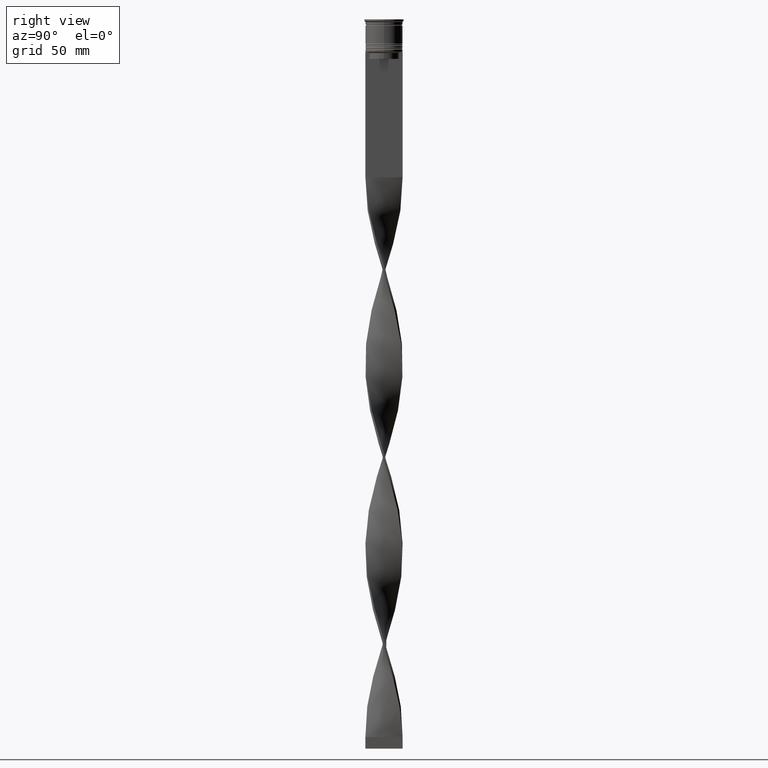
[diagram: clean part render]
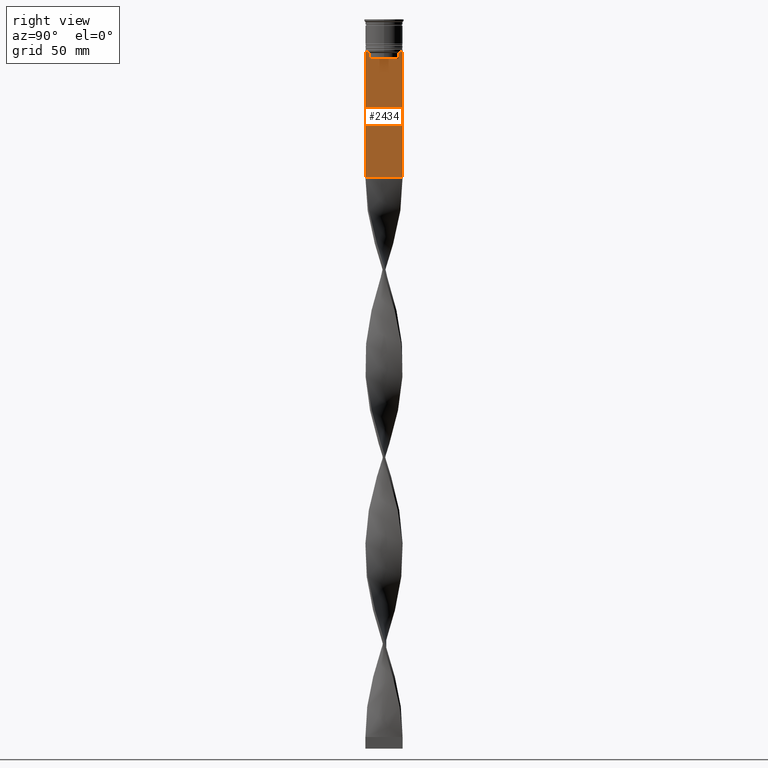
[diagram: same view with one face highlighted and labeled with its STEP entity id]
A machine part, right view. The second image highlights one B-rep face of the part: STEP entity #2434.
In plain terms, the highlighted planar face has unit normal (-1, 0, 0).
Its self-contained STEP definition (entity closure, byte-faithful):
#4 = CARTESIAN_POINT ( 'NONE',  ( 0.5000000000000001110, -8.000000000000003553, -14.00000000000000178 ) ) ;
#14 = ORIENTED_EDGE ( 'NONE', *, *, #648, .T. ) ;
#16 = VERTEX_POINT ( 'NONE', #3352 ) ;
#38 = EDGE_CURVE ( 'NONE', #16, #1427, #617, .T. ) ;
#120 = CARTESIAN_POINT ( 'NONE',  ( 0.5000000000000001110, -8.000000000000003553, -68.00000000000000000 ) ) ;
#122 = DIRECTION ( 'NONE',  ( 0.000000000000000000, -1.000000000000000000, 0.000000000000000000 ) ) ;
#146 = DIRECTION ( 'NONE',  ( 0.000000000000000000, -1.000000000000000000, 0.000000000000000000 ) ) ;
#159 = AXIS2_PLACEMENT_3D ( 'NONE', #226, #3437, #550 ) ;
#166 = VERTEX_POINT ( 'NONE', #2856 ) ;
#206 = DIRECTION ( 'NONE',  ( 0.000000000000000000, -1.000000000000000000, 0.000000000000000000 ) ) ;
#226 = CARTESIAN_POINT ( 'NONE',  ( 0.5000000000000001110, -8.000000000000003553, 2.031219541881394530 ) ) ;
#265 = ORIENTED_EDGE ( 'NONE', *, *, #2308, .T. ) ;
#384 = LINE ( 'NONE', #1644, #860 ) ;
#405 = CARTESIAN_POINT ( 'NONE',  ( 0.5000000000000001110, 6.547597841304911626, -14.33335192459222718 ) ) ;
#427 = ORIENTED_EDGE ( 'NONE', *, *, #3803, .T. ) ;
#511 = CARTESIAN_POINT ( 'NONE',  ( 0.5000000000000001110, 6.881860213634098500, -14.00000000000000178 ) ) ;
#550 = DIRECTION ( 'NONE',  ( 0.000000000000000000, 0.000000000000000000, 1.000000000000000000 ) ) ;
#601 = EDGE_CURVE ( 'NONE', #2639, #4057, #384, .T. ) ;
#617 = LINE ( 'NONE', #4, #1116 ) ;
#629 = EDGE_CURVE ( 'NONE', #2063, #3562, #634, .T. ) ;
#634 = B_SPLINE_CURVE_WITH_KNOTS ( 'NONE', 3,
 ( #1307, #2369, #1020, #3567 ),
 .UNSPECIFIED., .F., .F.,
 ( 4, 4 ),
 ( 0.02996184199614751464, 0.03067452609193705923 ),
 .UNSPECIFIED. ) ;
#648 = EDGE_CURVE ( 'NONE', #1427, #166, #3068, .T. ) ;
#662 = VECTOR ( 'NONE', #3692, 1000.000000000000000 ) ;
#665 = CARTESIAN_POINT ( 'NONE',  ( 0.5000000000000001110, -8.000000000000003553, -14.00000000000000178 ) ) ;
#711 = ORIENTED_EDGE ( 'NONE', *, *, #38, .T. ) ;
#714 = LINE ( 'NONE', #1821, #2943 ) ;
#837 = FACE_OUTER_BOUND ( 'NONE', #1835, .T. ) ;
#860 = VECTOR ( 'NONE', #3850, 1000.000000000000000 ) ;
#932 = VERTEX_POINT ( 'NONE', #2582 ) ;
#946 = ORIENTED_EDGE ( 'NONE', *, *, #2026, .T. ) ;
#1020 = CARTESIAN_POINT ( 'NONE',  ( 0.5000000000000001110, -6.714736947305993908, -14.16668390685738821 ) ) ;
#1025 = CARTESIAN_POINT ( 'NONE',  ( 0.5000000000000001110, 7.999999999999996447, 2.031219541881394530 ) ) ;
#1085 = EDGE_CURVE ( 'NONE', #1912, #16, #3593, .T. ) ;
#1116 = VECTOR ( 'NONE', #3487, 1000.000000000000000 ) ;
#1164 = DIRECTION ( 'NONE',  ( 0.000000000000000000, -1.000000000000000000, 0.000000000000000000 ) ) ;
#1182 = LINE ( 'NONE', #3048, #662 ) ;
#1195 = VECTOR ( 'NONE', #122, 1000.000000000000000 ) ;
#1200 = VECTOR ( 'NONE', #3367, 1000.000000000000000 ) ;
#1208 = PLANE ( 'NONE',  #159 ) ;
#1232 = CARTESIAN_POINT ( 'NONE',  ( 0.5000000000000001110, -6.881860213634098500, -14.00000000000000178 ) ) ;
#1287 = EDGE_CURVE ( 'NONE', #2170, #932, #4027, .T. ) ;
#1307 = CARTESIAN_POINT ( 'NONE',  ( 0.5000000000000001110, -6.380438856379708312, -14.50000000000000000 ) ) ;
#1340 = CARTESIAN_POINT ( 'NONE',  ( 0.5000000000000001110, -6.380438856379708312, 0.000000000000000000 ) ) ;
#1369 = ORIENTED_EDGE ( 'NONE', *, *, #2846, .T. ) ;
#1427 = VERTEX_POINT ( 'NONE', #511 ) ;
#1432 = EDGE_CURVE ( 'NONE', #166, #2170, #1182, .T. ) ;
#1451 = CARTESIAN_POINT ( 'NONE',  ( 0.5000000000000001110, 6.399999999999999467, -17.00000000000000000 ) ) ;
#1644 = CARTESIAN_POINT ( 'NONE',  ( 0.5000000000000001110, -8.000000000000003553, 2.031219541881394530 ) ) ;
#1677 = DIRECTION ( 'NONE',  ( -0.000000000000000000, -0.000000000000000000, 1.000000000000000000 ) ) ;
#1683 = VERTEX_POINT ( 'NONE', #2459 ) ;
#1821 = CARTESIAN_POINT ( 'NONE',  ( 0.5000000000000001110, -8.000000000000003553, -68.00000000000000000 ) ) ;
#1835 = EDGE_LOOP ( 'NONE', ( #711, #14, #2704, #2965, #1369, #2988, #265, #946, #3643, #427, #2146, #3743 ) ) ;
#1912 = VERTEX_POINT ( 'NONE', #2482 ) ;
#1932 = LINE ( 'NONE', #1340, #3199 ) ;
#2026 = EDGE_CURVE ( 'NONE', #1683, #2639, #2270, .T. ) ;
#2040 = VECTOR ( 'NONE', #206, 1000.000000000000000 ) ;
#2050 = VERTEX_POINT ( 'NONE', #3290 ) ;
#2063 = VERTEX_POINT ( 'NONE', #3002 ) ;
#2067 = LINE ( 'NONE', #2130, #2879 ) ;
#2082 = LINE ( 'NONE', #1025, #1200 ) ;
#2130 = CARTESIAN_POINT ( 'NONE',  ( 0.5000000000000001110, -8.000000000000003553, -14.00000000000000178 ) ) ;
#2146 = ORIENTED_EDGE ( 'NONE', *, *, #3686, .F. ) ;
#2170 = VERTEX_POINT ( 'NONE', #4008 ) ;
#2251 = CARTESIAN_POINT ( 'NONE',  ( 0.5000000000000001110, -8.000000000000003553, -14.00000000000000178 ) ) ;
#2255 = CARTESIAN_POINT ( 'NONE',  ( 0.5000000000000001110, 6.380438856379708312, -14.50000000000000000 ) ) ;
#2270 = LINE ( 'NONE', #2251, #1195 ) ;
#2308 = EDGE_CURVE ( 'NONE', #3562, #1683, #2067, .T. ) ;
#2369 = CARTESIAN_POINT ( 'NONE',  ( 0.5000000000000001110, -6.547597841511247019, -14.33335192438652150 ) ) ;
#2434 = ADVANCED_FACE ( 'NONE', ( #837 ), #1208, .F. ) ;
#2459 = CARTESIAN_POINT ( 'NONE',  ( 0.5000000000000001110, -7.884161337770806632, -14.00000000000000178 ) ) ;
#2482 = CARTESIAN_POINT ( 'NONE',  ( 0.5000000000000001110, 7.999999999999996447, -14.00000000000000178 ) ) ;
#2582 = CARTESIAN_POINT ( 'NONE',  ( 0.5000000000000001110, -6.380438856379708312, -17.00000000000000000 ) ) ;
#2639 = VERTEX_POINT ( 'NONE', #665 ) ;
#2704 = ORIENTED_EDGE ( 'NONE', *, *, #1432, .T. ) ;
#2819 = DIRECTION ( 'NONE',  ( 0.000000000000000000, 1.000000000000000000, 0.000000000000000000 ) ) ;
#2846 = EDGE_CURVE ( 'NONE', #932, #2063, #1932, .T. ) ;
#2856 = CARTESIAN_POINT ( 'NONE',  ( 0.5000000000000001110, 6.380438856379708312, -14.50000000000000000 ) ) ;
#2870 = VECTOR ( 'NONE', #146, 1000.000000000000000 ) ;
#2879 = VECTOR ( 'NONE', #1164, 1000.000000000000000 ) ;
#2943 = VECTOR ( 'NONE', #2819, 1000.000000000000000 ) ;
#2965 = ORIENTED_EDGE ( 'NONE', *, *, #1287, .T. ) ;
#2988 = ORIENTED_EDGE ( 'NONE', *, *, #629, .T. ) ;
#2991 = CARTESIAN_POINT ( 'NONE',  ( 0.5000000000000001110, -8.000000000000003553, -14.00000000000000178 ) ) ;
#3002 = CARTESIAN_POINT ( 'NONE',  ( 0.5000000000000001110, -6.380438856379708312, -14.50000000000000000 ) ) ;
#3048 = CARTESIAN_POINT ( 'NONE',  ( 0.5000000000000001110, 6.380438856379708312, 0.000000000000000000 ) ) ;
#3068 = B_SPLINE_CURVE_WITH_KNOTS ( 'NONE', 3,
 ( #3346, #3895, #405, #2255 ),
 .UNSPECIFIED., .F., .F.,
 ( 4, 4 ),
 ( 0.01172465562756038263, 0.01243276816391822651 ),
 .UNSPECIFIED. ) ;
#3199 = VECTOR ( 'NONE', #1677, 1000.000000000000000 ) ;
#3290 = CARTESIAN_POINT ( 'NONE',  ( 0.5000000000000001110, 7.999999999999996447, -68.00000000000000000 ) ) ;
#3346 = CARTESIAN_POINT ( 'NONE',  ( 0.5000000000000001110, 6.881860213634098500, -14.00000000000000178 ) ) ;
#3352 = CARTESIAN_POINT ( 'NONE',  ( 0.5000000000000001110, 7.884161337770806632, -14.00000000000000178 ) ) ;
#3367 = DIRECTION ( 'NONE',  ( 0.000000000000000000, 0.000000000000000000, -1.000000000000000000 ) ) ;
#3437 = DIRECTION ( 'NONE',  ( -1.000000000000000000, 0.000000000000000000, 0.000000000000000000 ) ) ;
#3487 = DIRECTION ( 'NONE',  ( 0.000000000000000000, -1.000000000000000000, 0.000000000000000000 ) ) ;
#3562 = VERTEX_POINT ( 'NONE', #1232 ) ;
#3567 = CARTESIAN_POINT ( 'NONE',  ( 0.5000000000000001110, -6.881860213634098500, -14.00000000000000178 ) ) ;
#3593 = LINE ( 'NONE', #2991, #2870 ) ;
#3643 = ORIENTED_EDGE ( 'NONE', *, *, #601, .T. ) ;
#3686 = EDGE_CURVE ( 'NONE', #1912, #2050, #2082, .T. ) ;
#3692 = DIRECTION ( 'NONE',  ( 0.000000000000000000, 0.000000000000000000, -1.000000000000000000 ) ) ;
#3743 = ORIENTED_EDGE ( 'NONE', *, *, #1085, .T. ) ;
#3803 = EDGE_CURVE ( 'NONE', #4057, #2050, #714, .T. ) ;
#3850 = DIRECTION ( 'NONE',  ( 0.000000000000000000, 0.000000000000000000, -1.000000000000000000 ) ) ;
#3895 = CARTESIAN_POINT ( 'NONE',  ( 0.5000000000000001110, 6.714736947114692711, -14.16668390704818847 ) ) ;
#4008 = CARTESIAN_POINT ( 'NONE',  ( 0.5000000000000001110, 6.380438856379708312, -17.00000000000000000 ) ) ;
#4027 = LINE ( 'NONE', #1451, #2040 ) ;
#4057 = VERTEX_POINT ( 'NONE', #120 ) ;